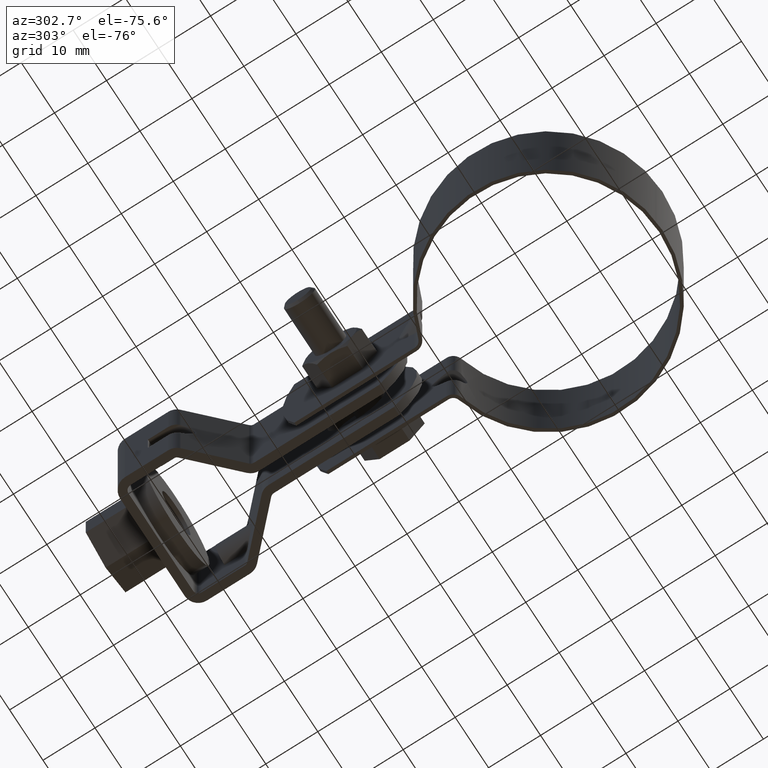
[diagram: clean part render]
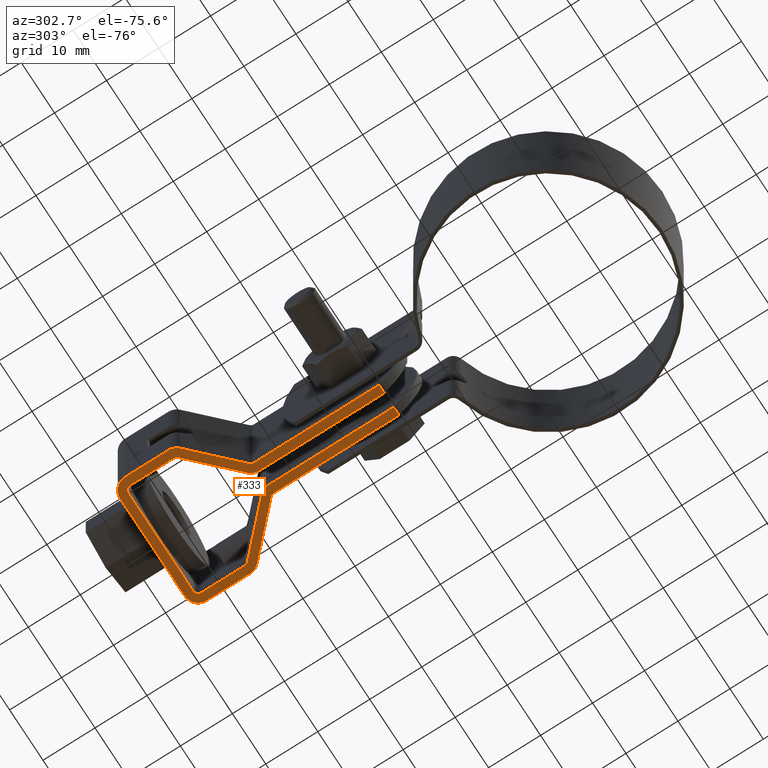
[diagram: same view with one face highlighted and labeled with its STEP entity id]
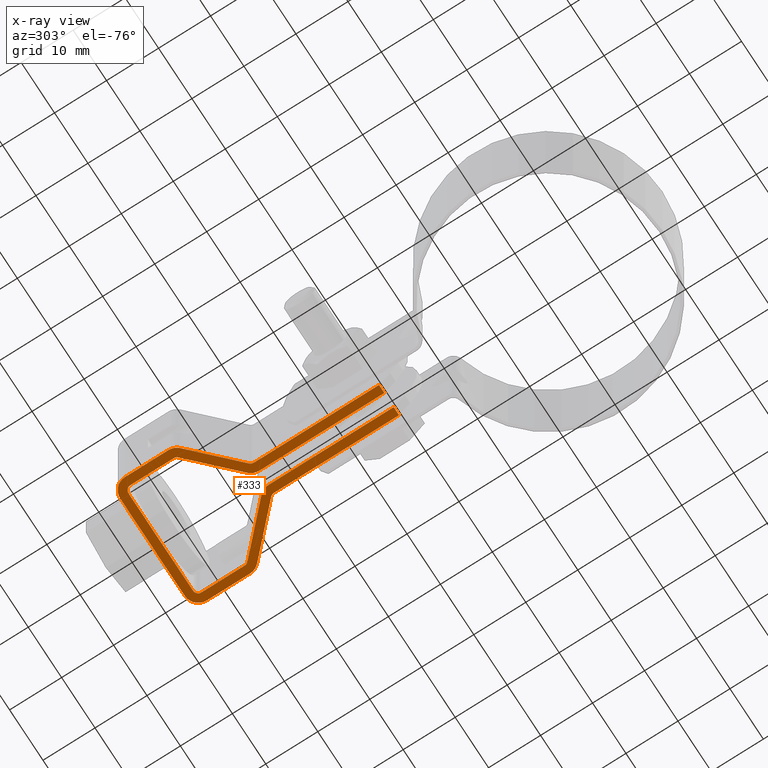
[diagram: x-ray of the same camera — body ghosted, the highlighted face saturated]
A machine part, auxiliary view. The second image highlights one B-rep face of the part: STEP entity #333.
The next image is the same camera in x-ray: the body ghosted, the highlighted face saturated — about 0% of this face is hidden behind the body in this view.
In plain terms, the highlighted planar face has unit normal (0, -0, 1).
Its self-contained STEP definition (entity closure, byte-faithful):
#333 = ADVANCED_FACE( '', ( #536 ), #537, .F. );
#536 = FACE_OUTER_BOUND( '', #808, .T. );
#537 = PLANE( '', #809 );
#808 = EDGE_LOOP( '', ( #1454, #1455, #1456, #1457, #1458, #1459, #1460, #1461, #1462, #1463, #1464, #1465, #1466, #1467, #1468, #1469, #1470, #1471, #1472, #1473, #1474, #1475, #1476, #1477, #1478, #1479, #1480, #1481 ) );
#809 = AXIS2_PLACEMENT_3D( '', #1482, #1483, #1484 );
#1454 = ORIENTED_EDGE( '', *, *, #2095, .T. );
#1455 = ORIENTED_EDGE( '', *, *, #2096, .T. );
#1456 = ORIENTED_EDGE( '', *, *, #2097, .F. );
#1457 = ORIENTED_EDGE( '', *, *, #2098, .F. );
#1458 = ORIENTED_EDGE( '', *, *, #2099, .F. );
#1459 = ORIENTED_EDGE( '', *, *, #2100, .F. );
#1460 = ORIENTED_EDGE( '', *, *, #2101, .F. );
#1461 = ORIENTED_EDGE( '', *, *, #2102, .T. );
#1462 = ORIENTED_EDGE( '', *, *, #2103, .T. );
#1463 = ORIENTED_EDGE( '', *, *, #2104, .T. );
#1464 = ORIENTED_EDGE( '', *, *, #2105, .T. );
#1465 = ORIENTED_EDGE( '', *, *, #2106, .F. );
#1466 = ORIENTED_EDGE( '', *, *, #2107, .F. );
#1467 = ORIENTED_EDGE( '', *, *, #2108, .T. );
#1468 = ORIENTED_EDGE( '', *, *, #2109, .F. );
#1469 = ORIENTED_EDGE( '', *, *, #2110, .F. );
#1470 = ORIENTED_EDGE( '', *, *, #2111, .T. );
#1471 = ORIENTED_EDGE( '', *, *, #2112, .T. );
#1472 = ORIENTED_EDGE( '', *, *, #2113, .T. );
#1473 = ORIENTED_EDGE( '', *, *, #2114, .T. );
#1474 = ORIENTED_EDGE( '', *, *, #2115, .F. );
#1475 = ORIENTED_EDGE( '', *, *, #2116, .F. );
#1476 = ORIENTED_EDGE( '', *, *, #2117, .F. );
#1477 = ORIENTED_EDGE( '', *, *, #2118, .F. );
#1478 = ORIENTED_EDGE( '', *, *, #2119, .F. );
#1479 = ORIENTED_EDGE( '', *, *, #2120, .T. );
#1480 = ORIENTED_EDGE( '', *, *, #2121, .T. );
#1481 = ORIENTED_EDGE( '', *, *, #2122, .F. );
#1482 = CARTESIAN_POINT( '', ( 9.65000000345816, 73.5203729309172, -12.4999985991045 ) );
#1483 = DIRECTION( '', ( 1.87698704392248E-011, -9.98350074832307E-009, 1.00000000000000 ) );
#1484 = DIRECTION( '', ( 1.39877502405819E-011, 1.00000000000000, 9.98350074832280E-009 ) );
#2095 = EDGE_CURVE( '', #2521, #2522, #2523, .T. );
#2096 = EDGE_CURVE( '', #2522, #2524, #2525, .F. );
#2097 = EDGE_CURVE( '', #2526, #2524, #2527, .T. );
#2098 = EDGE_CURVE( '', #2528, #2526, #2529, .T. );
#2099 = EDGE_CURVE( '', #2530, #2528, #2531, .T. );
#2100 = EDGE_CURVE( '', #2532, #2530, #2533, .T. );
#2101 = EDGE_CURVE( '', #2534, #2532, #2535, .T. );
#2102 = EDGE_CURVE( '', #2534, #2536, #2537, .T. );
#2103 = EDGE_CURVE( '', #2536, #2538, #2539, .T. );
#2104 = EDGE_CURVE( '', #2538, #2540, #2541, .T. );
#2105 = EDGE_CURVE( '', #2540, #2542, #2543, .T. );
#2106 = EDGE_CURVE( '', #2544, #2542, #2545, .F. );
#2107 = EDGE_CURVE( '', #2546, #2544, #2547, .T. );
#2108 = EDGE_CURVE( '', #2546, #2548, #2549, .F. );
#2109 = EDGE_CURVE( '', #2550, #2548, #2551, .T. );
#2110 = EDGE_CURVE( '', #2552, #2550, #2553, .T. );
#2111 = EDGE_CURVE( '', #2552, #2554, #2555, .T. );
#2112 = EDGE_CURVE( '', #2554, #2556, #2557, .T. );
#2113 = EDGE_CURVE( '', #2556, #2558, #2559, .T. );
#2114 = EDGE_CURVE( '', #2558, #2560, #2561, .T. );
#2115 = EDGE_CURVE( '', #2562, #2560, #2563, .T. );
#2116 = EDGE_CURVE( '', #2564, #2562, #2565, .T. );
#2117 = EDGE_CURVE( '', #2566, #2564, #2567, .T. );
#2118 = EDGE_CURVE( '', #2568, #2566, #2569, .T. );
#2119 = EDGE_CURVE( '', #2570, #2568, #2571, .T. );
#2120 = EDGE_CURVE( '', #2570, #2572, #2573, .T. );
#2121 = EDGE_CURVE( '', #2572, #2574, #2575, .T. );
#2122 = EDGE_CURVE( '', #2521, #2574, #2576, .F. );
#2521 = VERTEX_POINT( '', #3261 );
#2522 = VERTEX_POINT( '', #3262 );
#2523 = LINE( '', #3263, #3264 );
#2524 = VERTEX_POINT( '', #3265 );
#2525 = CIRCLE( '', #3266, 2.60000000000000 );
#2526 = VERTEX_POINT( '', #3267 );
#2527 = LINE( '', #3268, #3269 );
#2528 = VERTEX_POINT( '', #3270 );
#2529 = CIRCLE( '', #3271, 1.00000000000000 );
#2530 = VERTEX_POINT( '', #3272 );
#2531 = LINE( '', #3273, #3274 );
#2532 = VERTEX_POINT( '', #3275 );
#2533 = CIRCLE( '', #3276, 1.00000000000000 );
#2534 = VERTEX_POINT( '', #3277 );
#2535 = LINE( '', #3278, #3279 );
#2536 = VERTEX_POINT( '', #3280 );
#2537 = CIRCLE( '', #3281, 1.00000000000000 );
#2538 = VERTEX_POINT( '', #3282 );
#2539 = LINE( '', #3283, #3284 );
#2540 = VERTEX_POINT( '', #3285 );
#2541 = CIRCLE( '', #3286, 0.999999999999999 );
#2542 = VERTEX_POINT( '', #3287 );
#2543 = LINE( '', #3288, #3289 );
#2544 = VERTEX_POINT( '', #3290 );
#2545 = CIRCLE( '', #3291, 2.59999999999999 );
#2546 = VERTEX_POINT( '', #3292 );
#2547 = LINE( '', #3293, #3294 );
#2548 = VERTEX_POINT( '', #3295 );
#2549 = LINE( '', #3296, #3297 );
#2550 = VERTEX_POINT( '', #3298 );
#2551 = LINE( '', #3299, #3300 );
#2552 = VERTEX_POINT( '', #3301 );
#2553 = CIRCLE( '', #3302, 0.999999999999998 );
#2554 = VERTEX_POINT( '', #3303 );
#2555 = LINE( '', #3304, #3305 );
#2556 = VERTEX_POINT( '', #3306 );
#2557 = CIRCLE( '', #3307, 2.59999999999999 );
#2558 = VERTEX_POINT( '', #3308 );
#2559 = LINE( '', #3309, #3310 );
#2560 = VERTEX_POINT( '', #3311 );
#2561 = CIRCLE( '', #3312, 2.59999999999999 );
#2562 = VERTEX_POINT( '', #3313 );
#2563 = LINE( '', #3314, #3315 );
#2564 = VERTEX_POINT( '', #3316 );
#2565 = CIRCLE( '', #3317, 2.59999999999999 );
#2566 = VERTEX_POINT( '', #3318 );
#2567 = LINE( '', #3319, #3320 );
#2568 = VERTEX_POINT( '', #3321 );
#2569 = CIRCLE( '', #3322, 2.59999999999999 );
#2570 = VERTEX_POINT( '', #3323 );
#2571 = LINE( '', #3324, #3325 );
#2572 = VERTEX_POINT( '', #3326 );
#2573 = CIRCLE( '', #3327, 1.00000000000000 );
#2574 = VERTEX_POINT( '', #3328 );
#2575 = LINE( '', #3329, #3330 );
#2576 = LINE( '', #3331, #3332 );
#3261 = CARTESIAN_POINT( '', ( 1.40000000285808, 30.6203729641208, -12.4999990272418 ) );
#3262 = CARTESIAN_POINT( '', ( 1.40000000319454, 54.6745193053288, -12.4999987870972 ) );
#3263 = CARTESIAN_POINT( '', ( 1.40000000279513, 26.1203729310328, -12.4999990721675 ) );
#3264 = VECTOR( '', #3948, 1000.00000000000 );
#3265 = CARTESIAN_POINT( '', ( 2.18435803084128, 56.5355524130660, -12.4999987685323 ) );
#3266 = AXIS2_PLACEMENT_3D( '', #3949, #3950, #3951 );
#3267 = CARTESIAN_POINT( '', ( 10.3483238388625, 64.5003967352790, -12.4999986891685 ) );
#3268 = CARTESIAN_POINT( '', ( 10.3483238388625, 64.5003967352790, -12.4999986891685 ) );
#3269 = VECTOR( '', #3952, 1000.00000000000 );
#3270 = CARTESIAN_POINT( '', ( 10.6500000033420, 65.2161786997933, -12.4999986820282 ) );
#3271 = AXIS2_PLACEMENT_3D( '', #3953, #3954, #3955 );
#3272 = CARTESIAN_POINT( '', ( 10.6500000034582, 73.5203729309032, -12.4999985991232 ) );
#3273 = CARTESIAN_POINT( '', ( 10.6500000034582, 73.5203729309032, -12.4999985991232 ) );
#3274 = VECTOR( '', #3956, 1000.00000000000 );
#3275 = CARTESIAN_POINT( '', ( 9.65000000347214, 74.5203729309172, -12.4999985891210 ) );
#3276 = AXIS2_PLACEMENT_3D( '', #3957, #3958, #3959 );
#3277 = CARTESIAN_POINT( '', ( -9.64999999652785, 74.5203729311875, -12.4999985887587 ) );
#3278 = CARTESIAN_POINT( '', ( -9.64999999652787, 74.5203729311872, -12.4999985887587 ) );
#3279 = VECTOR( '', #3960, 1000.00000000000 );
#3280 = CARTESIAN_POINT( '', ( -10.6499999965418, 73.5203729312015, -12.4999985987235 ) );
#3281 = AXIS2_PLACEMENT_3D( '', #3961, #3962, #3963 );
#3282 = CARTESIAN_POINT( '', ( -10.6499999966580, 65.2161787000915, -12.4999986816284 ) );
#3283 = CARTESIAN_POINT( '', ( -10.6499999965418, 73.5203729312015, -12.4999985987235 ) );
#3284 = VECTOR( '', #3964, 1000.00000000000 );
#3285 = CARTESIAN_POINT( '', ( -10.3483238321985, 64.5003967355688, -12.4999986887801 ) );
#3286 = AXIS2_PLACEMENT_3D( '', #3965, #3966, #3967 );
#3287 = CARTESIAN_POINT( '', ( -2.18435802440013, 56.5355524131274, -12.4999987684503 ) );
#3288 = CARTESIAN_POINT( '', ( -10.3483238321985, 64.5003967355688, -12.4999986887801 ) );
#3289 = VECTOR( '', #3968, 1000.00000000000 );
#3290 = CARTESIAN_POINT( '', ( -1.39999999680546, 54.6745193053683, -12.4999987870447 ) );
#3291 = AXIS2_PLACEMENT_3D( '', #3969, #3970, #3971 );
#3292 = CARTESIAN_POINT( '', ( -1.39999999714192, 30.6203729641602, -12.4999990271892 ) );
#3293 = CARTESIAN_POINT( '', ( -1.39999999720486, 26.1203729310722, -12.4999990721150 ) );
#3294 = VECTOR( '', #3972, 1000.00000000000 );
#3295 = CARTESIAN_POINT( '', ( -2.99999999714194, 30.6203729690741, -12.4999990330725 ) );
#3296 = CARTESIAN_POINT( '', ( -38.4737108537377, 30.6203729646788, -12.4999990264934 ) );
#3297 = VECTOR( '', #3973, 999.999999999998 );
#3298 = CARTESIAN_POINT( '', ( -2.99999999680545, 54.6745193356148, -12.4999987870146 ) );
#3299 = CARTESIAN_POINT( '', ( -2.99999999679955, 55.0959831045049, -12.4999987828069 ) );
#3300 = VECTOR( '', #3974, 1000.00000000000 );
#3301 = CARTESIAN_POINT( '', ( -3.30167616126493, 55.3903013001375, -12.4999987798630 ) );
#3302 = AXIS2_PLACEMENT_3D( '', #3975, #3976, #3977 );
#3303 = CARTESIAN_POINT( '', ( -11.4656419690633, 63.3551456225789, -12.4999987001927 ) );
#3304 = CARTESIAN_POINT( '', ( -3.90167616125675, 55.9756671267355, -12.4999987740077 ) );
#3305 = VECTOR( '', #3978, 1000.00000000000 );
#3306 = CARTESIAN_POINT( '', ( -12.2499999966580, 65.2161787303380, -12.4999986815984 ) );
#3307 = AXIS2_PLACEMENT_3D( '', #3979, #3980, #3981 );
#3308 = CARTESIAN_POINT( '', ( -12.2499999965418, 73.5203729312239, -12.4999985986934 ) );
#3309 = CARTESIAN_POINT( '', ( -12.2499999966580, 65.2161787303380, -12.4999986815984 ) );
#3310 = VECTOR( '', #3982, 1000.00000000000 );
#3311 = CARTESIAN_POINT( '', ( -9.64999999650547, 76.1203729311875, -12.4999985727851 ) );
#3312 = AXIS2_PLACEMENT_3D( '', #3983, #3984, #3985 );
#3313 = CARTESIAN_POINT( '', ( 9.65000000349452, 76.1203729309172, -12.4999985731474 ) );
#3314 = CARTESIAN_POINT( '', ( 9.65000000349452, 76.1203729309172, -12.4999985731474 ) );
#3315 = VECTOR( '', #3986, 1000.00000000000 );
#3316 = CARTESIAN_POINT( '', ( 12.2500000034581, 73.5203729308808, -12.4999985991533 ) );
#3317 = AXIS2_PLACEMENT_3D( '', #3987, #3988, #3989 );
#3318 = CARTESIAN_POINT( '', ( 12.2500000033420, 65.2161787299950, -12.4999986820582 ) );
#3319 = CARTESIAN_POINT( '', ( 12.2500000033420, 65.2161787299950, -12.4999986820582 ) );
#3320 = VECTOR( '', #3990, 1000.00000000000 );
#3321 = CARTESIAN_POINT( '', ( 11.4656419756953, 63.3551456222579, -12.4999987006231 ) );
#3322 = AXIS2_PLACEMENT_3D( '', #3991, #3992, #3993 );
#3323 = CARTESIAN_POINT( '', ( 3.30167616767404, 55.3903013000448, -12.4999987799869 ) );
#3324 = CARTESIAN_POINT( '', ( 3.90167616768224, 55.9756671266261, -12.4999987741542 ) );
#3325 = VECTOR( '', #3994, 1000.00000000000 );
#3326 = CARTESIAN_POINT( '', ( 3.00000000319454, 54.6745193355306, -12.4999987871272 ) );
#3327 = AXIS2_PLACEMENT_3D( '', #3995, #3996, #3997 );
#3328 = CARTESIAN_POINT( '', ( 3.00000000285810, 30.6203729689899, -12.4999990331851 ) );
#3329 = CARTESIAN_POINT( '', ( 3.00000000320043, 55.0959831044206, -12.4999987829195 ) );
#3330 = VECTOR( '', #3998, 1000.00000000000 );
#3331 = CARTESIAN_POINT( '', ( 38.4737108594540, 30.6203729636022, -12.4999990279376 ) );
#3332 = VECTOR( '', #3999, 1000.00000000000 );
#3948 = DIRECTION( '', ( 1.39878612628844E-011, 1.00000000000000, 9.98350074832280E-009 ) );
#3949 = CARTESIAN_POINT( '', ( 4.00000000319453, 54.6745193052925, -12.4999987871460 ) );
#3950 = DIRECTION( '', ( 1.87698704392248E-011, -9.98350074832307E-009, 1.00000000000000 ) );
#3951 = DIRECTION( '', ( 1.00000000000000, -1.39877500531929E-011, -1.87698705788715E-011 ) );
#3952 = DIRECTION( '', ( -0.715781964528273, -0.698323835520488, -6.95828139975370E-009 ) );
#3953 = CARTESIAN_POINT( '', ( 9.65000000334200, 65.2161786998073, -12.4999986820094 ) );
#3954 = DIRECTION( '', ( -1.87698704392248E-011, 9.98350074832307E-009, -1.00000000000000 ) );
#3955 = DIRECTION( '', ( 1.00000000000000, -1.39877500531929E-011, -1.87698705788715E-011 ) );
#3956 = DIRECTION( '', ( -1.39877502405819E-011, -1.00000000000000, -9.98350074832280E-009 ) );
#3957 = CARTESIAN_POINT( '', ( 9.65000000345816, 73.5203729309172, -12.4999985991045 ) );
#3958 = DIRECTION( '', ( -1.87698704392248E-011, 9.98350074832307E-009, -1.00000000000000 ) );
#3959 = DIRECTION( '', ( 1.39877502405819E-011, 1.00000000000000, 9.98350074832280E-009 ) );
#3960 = DIRECTION( '', ( 1.00000000000000, -1.39877500531929E-011, -1.87698705788715E-011 ) );
#3961 = CARTESIAN_POINT( '', ( -9.64999999654184, 73.5203729311875, -12.4999985987422 ) );
#3962 = DIRECTION( '', ( 1.87698704392248E-011, -9.98350074832307E-009, 1.00000000000000 ) );
#3963 = DIRECTION( '', ( 1.39876277799465E-011, 1.00000000000000, 9.98350074832281E-009 ) );
#3964 = DIRECTION( '', ( -1.39876277799465E-011, -1.00000000000000, -9.98350074832280E-009 ) );
#3965 = CARTESIAN_POINT( '', ( -9.64999999665799, 65.2161787000775, -12.4999986816472 ) );
#3966 = DIRECTION( '', ( 1.87698704392248E-011, -9.98350074832307E-009, 1.00000000000000 ) );
#3967 = DIRECTION( '', ( -1.00000000000000, 1.39876275925575E-011, 1.87698705788703E-011 ) );
#3968 = DIRECTION( '', ( 0.715781964508736, -0.698323835540514, -6.98515166942712E-009 ) );
#3969 = CARTESIAN_POINT( '', ( -3.99999999680544, 54.6745193054047, -12.4999987869959 ) );
#3970 = DIRECTION( '', ( -1.87698704392248E-011, 9.98350074832307E-009, -1.00000000000000 ) );
#3971 = DIRECTION( '', ( -1.00000000000000, 1.39876275925575E-011, 1.87698705788703E-011 ) );
#3972 = DIRECTION( '', ( 1.39875167576441E-011, 1.00000000000000, 9.98350074832280E-009 ) );
#3973 = DIRECTION( '', ( 1.00000000000000, -1.39876275925575E-011, -1.87698705788703E-011 ) );
#3974 = DIRECTION( '', ( -1.39875167576441E-011, -1.00000000000000, -9.98350074832280E-009 ) );
#3975 = CARTESIAN_POINT( '', ( -3.99999999680545, 54.6745193356288, -12.4999987869959 ) );
#3976 = DIRECTION( '', ( -1.87698704392248E-011, 9.98350074832307E-009, -1.00000000000000 ) );
#3977 = DIRECTION( '', ( -1.00000000000000, 1.39876275925575E-011, 1.87698705788703E-011 ) );
#3978 = DIRECTION( '', ( -0.715781964508736, 0.698323835540514, 6.98515166942712E-009 ) );
#3979 = CARTESIAN_POINT( '', ( -9.64999999665799, 65.2161787303016, -12.4999986816472 ) );
#3980 = DIRECTION( '', ( -1.87698704392238E-011, 9.98350074832307E-009, -1.00000000000000 ) );
#3981 = DIRECTION( '', ( -0.698323835540512, -0.715781964508738, -7.13290233039142E-009 ) );
#3982 = DIRECTION( '', ( 1.39876277799465E-011, 1.00000000000000, 9.98350074832280E-009 ) );
#3983 = CARTESIAN_POINT( '', ( -9.64999999654184, 73.5203729311875, -12.4999985987422 ) );
#3984 = DIRECTION( '', ( -1.87698704392248E-011, 9.98350074832307E-009, -1.00000000000000 ) );
#3985 = DIRECTION( '', ( -1.00000000000000, 1.39876275925575E-011, 1.87698705788703E-011 ) );
#3986 = DIRECTION( '', ( -1.00000000000000, 1.39877500531929E-011, 1.87698705788715E-011 ) );
#3987 = CARTESIAN_POINT( '', ( 9.65000000345816, 73.5203729309172, -12.4999985991045 ) );
#3988 = DIRECTION( '', ( 1.87698704392248E-011, -9.98350074832307E-009, 1.00000000000000 ) );
#3989 = DIRECTION( '', ( 1.00000000000000, -1.39877500531929E-011, -1.87698705788715E-011 ) );
#3990 = DIRECTION( '', ( 1.39877502405819E-011, 1.00000000000000, 9.98350074832280E-009 ) );
#3991 = CARTESIAN_POINT( '', ( 9.65000000334200, 65.2161787300314, -12.4999986820094 ) );
#3992 = DIRECTION( '', ( 1.87698704392248E-011, -9.98350074832307E-009, 1.00000000000000 ) );
#3993 = DIRECTION( '', ( 0.698323835520490, -0.715781964528272, -7.15911722642150E-009 ) );
#3994 = DIRECTION( '', ( 0.715781964528273, 0.698323835520488, 6.95828139975370E-009 ) );
#3995 = CARTESIAN_POINT( '', ( 4.00000000319454, 54.6745193355166, -12.4999987871460 ) );
#3996 = DIRECTION( '', ( 1.87698704392248E-011, -9.98350074832307E-009, 1.00000000000000 ) );
#3997 = DIRECTION( '', ( 1.00000000000000, -1.39877500531929E-011, -1.87698705788715E-011 ) );
#3998 = DIRECTION( '', ( -1.39878612628844E-011, -1.00000000000000, -9.98350074832280E-009 ) );
#3999 = DIRECTION( '', ( -1.00000000000000, 1.39877500531929E-011, 1.87698705788715E-011 ) );